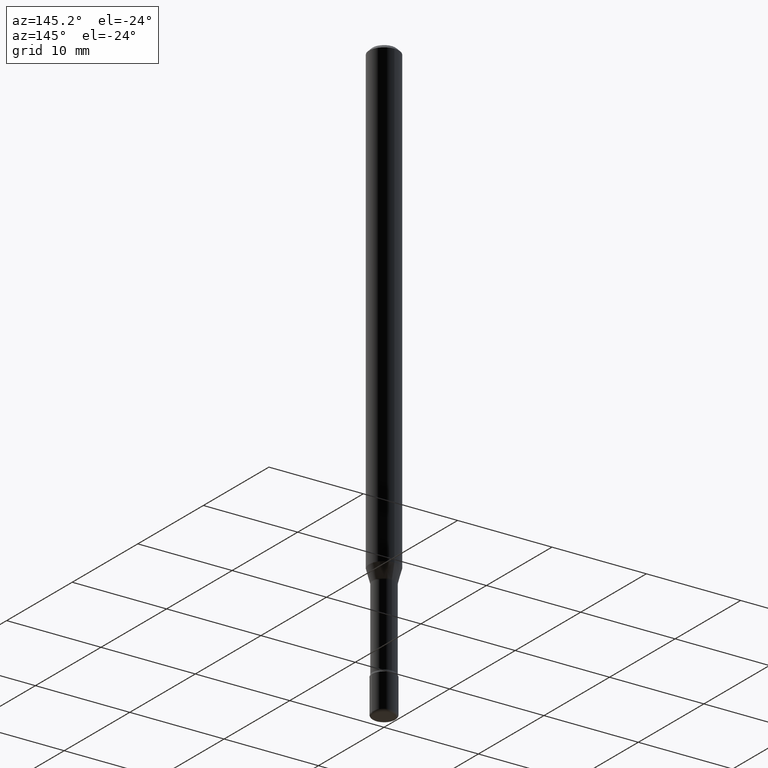
[diagram: clean part render]
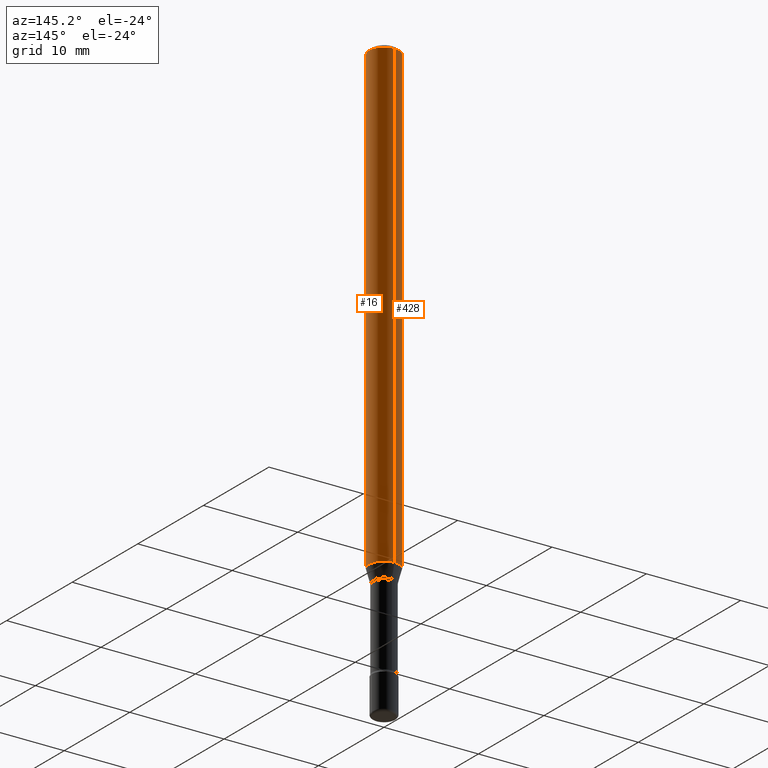
[diagram: same view with one multi-face feature highlighted, each face labeled with its STEP entity id]
A machine part, auxiliary view. The highlighted faces form ONE feature: a constant-radius fillet chain: 2 tangent blend faces with common blend radius 1.5875 mm. The faces share edges in the B-rep.
Their STEP definitions:
[1] entity #16 (Cylinder):
#16 = ADVANCED_FACE ( 'NONE', ( #132 ), #535, .T. ) ;
#29 = CARTESIAN_POINT ( 'NONE',  ( 4.749616140809899417E-29, -6.780789717166906576E-15, -1.942153212482682578 ) ) ;
#42 = CARTESIAN_POINT ( 'NONE',  ( -4.364351673553912750E-16, -0.06250000000000005551, -0.01499999999999981036 ) ) ;
#57 = CIRCLE ( 'NONE', #226, 0.06250000000000000000 ) ;
#66 = DIRECTION ( 'NONE',  ( -2.445541428082492260E-29, 3.491377340152750324E-15, 1.000000000000000000 ) ) ;
#75 = CIRCLE ( 'NONE', #442, 0.06250000000000000000 ) ;
#106 = DIRECTION ( 'NONE',  ( -2.445541428082492260E-29, 3.491377340152750324E-15, 1.000000000000000000 ) ) ;
#110 = ORIENTED_EDGE ( 'NONE', *, *, #406, .T. ) ;
#116 = VERTEX_POINT ( 'NONE', #549 ) ;
#132 = FACE_OUTER_BOUND ( 'NONE', #465, .T. ) ;
#149 = ORIENTED_EDGE ( 'NONE', *, *, #469, .F. ) ;
#152 = LINE ( 'NONE', #508, #225 ) ;
#159 = CARTESIAN_POINT ( 'NONE',  ( 4.440892098500625669E-16, 0.06250000000000000000, 2.598623151316991680E-16 ) ) ;
#161 = LINE ( 'NONE', #159, #290 ) ;
#179 = VERTEX_POINT ( 'NONE', #470 ) ;
#214 = CARTESIAN_POINT ( 'NONE',  ( -1.169113584055446105E-44, 1.669184350826100908E-30, 4.780733988912460139E-16 ) ) ;
#225 = VECTOR ( 'NONE', #106, 39.37007874015748143 ) ;
#226 = AXIS2_PLACEMENT_3D ( 'NONE', #29, #472, #474 ) ;
#229 = VERTEX_POINT ( 'NONE', #234 ) ;
#234 = CARTESIAN_POINT ( 'NONE',  ( 4.440892098501102436E-16, 0.06249999999999325540, -1.942153212482682800 ) ) ;
#261 = DIRECTION ( 'NONE',  ( -6.982962677686265922E-15, -1.000000000000000000, 3.491377340152751112E-15 ) ) ;
#262 = EDGE_CURVE ( 'NONE', #116, #494, #152, .T. ) ;
#290 = VECTOR ( 'NONE', #66, 39.37007874015748143 ) ;
#307 = AXIS2_PLACEMENT_3D ( 'NONE', #214, #352, #261 ) ;
#312 = EDGE_CURVE ( 'NONE', #229, #179, #161, .T. ) ;
#313 = DIRECTION ( 'NONE',  ( -6.982962677686265922E-15, -1.000000000000000000, 3.483106191921935554E-15 ) ) ;
#318 = ORIENTED_EDGE ( 'NONE', *, *, #312, .T. ) ;
#352 = DIRECTION ( 'NONE',  ( -2.445541428082492260E-29, 3.491377340152750324E-15, 1.000000000000000000 ) ) ;
#400 = CARTESIAN_POINT ( 'NONE',  ( 3.668312142123745187E-31, -5.237066010229135864E-17, -0.01500000000000002720 ) ) ;
#406 = EDGE_CURVE ( 'NONE', #116, #229, #57, .T. ) ;
#438 = DIRECTION ( 'NONE',  ( -2.445541428082492260E-29, 3.491377340152750324E-15, 1.000000000000000000 ) ) ;
#442 = AXIS2_PLACEMENT_3D ( 'NONE', #400, #438, #313 ) ;
#465 = EDGE_LOOP ( 'NONE', ( #110, #318, #149, #547 ) ) ;
#469 = EDGE_CURVE ( 'NONE', #494, #179, #75, .T. ) ;
#470 = CARTESIAN_POINT ( 'NONE',  ( 4.440892098501103423E-16, 0.06249999999999993755, -0.01500000000000024578 ) ) ;
#472 = DIRECTION ( 'NONE',  ( -2.445541428082492260E-29, 3.491377340152750324E-15, 1.000000000000000000 ) ) ;
#474 = DIRECTION ( 'NONE',  ( -6.982962677686265922E-15, -1.000000000000000000, 4.370956789862821150E-15 ) ) ;
#494 = VERTEX_POINT ( 'NONE', #42 ) ;
#508 = CARTESIAN_POINT ( 'NONE',  ( -4.364351673553916201E-16, -0.06250000000000000000, 6.962844826507930571E-16 ) ) ;
#535 = CYLINDRICAL_SURFACE ( 'NONE', #307, 0.06250000000000000000 ) ;
#547 = ORIENTED_EDGE ( 'NONE', *, *, #262, .F. ) ;
#549 = CARTESIAN_POINT ( 'NONE',  ( -4.364351673553439433E-16, -0.06250000000000675848, -1.942153212482682134 ) ) ;
[2] entity #428 (Cylinder):
#24 = CARTESIAN_POINT ( 'NONE',  ( 3.668312142123745187E-31, -5.237066010229135864E-17, -0.01500000000000002720 ) ) ;
#42 = CARTESIAN_POINT ( 'NONE',  ( -4.364351673553912750E-16, -0.06250000000000005551, -0.01499999999999981036 ) ) ;
#66 = DIRECTION ( 'NONE',  ( -2.445541428082492260E-29, 3.491377340152750324E-15, 1.000000000000000000 ) ) ;
#87 = ORIENTED_EDGE ( 'NONE', *, *, #262, .T. ) ;
#106 = DIRECTION ( 'NONE',  ( -2.445541428082492260E-29, 3.491377340152750324E-15, 1.000000000000000000 ) ) ;
#107 = DIRECTION ( 'NONE',  ( -6.982962677686265922E-15, -1.000000000000000000, 4.370956789862821150E-15 ) ) ;
#116 = VERTEX_POINT ( 'NONE', #549 ) ;
#117 = DIRECTION ( 'NONE',  ( -6.982962677686265922E-15, -1.000000000000000000, 3.491377340152751112E-15 ) ) ;
#144 = EDGE_CURVE ( 'NONE', #229, #116, #402, .T. ) ;
#152 = LINE ( 'NONE', #508, #225 ) ;
#159 = CARTESIAN_POINT ( 'NONE',  ( 4.440892098500625669E-16, 0.06250000000000000000, 2.598623151316991680E-16 ) ) ;
#161 = LINE ( 'NONE', #159, #290 ) ;
#164 = CYLINDRICAL_SURFACE ( 'NONE', #184, 0.06250000000000000000 ) ;
#167 = DIRECTION ( 'NONE',  ( -6.982962677686265922E-15, -1.000000000000000000, 3.483106191921935554E-15 ) ) ;
#179 = VERTEX_POINT ( 'NONE', #470 ) ;
#184 = AXIS2_PLACEMENT_3D ( 'NONE', #201, #426, #117 ) ;
#196 = CARTESIAN_POINT ( 'NONE',  ( 4.749616140809899417E-29, -6.780789717166906576E-15, -1.942153212482682578 ) ) ;
#198 = CIRCLE ( 'NONE', #300, 0.06250000000000000000 ) ;
#201 = CARTESIAN_POINT ( 'NONE',  ( -1.169113584055446105E-44, 1.669184350826100908E-30, 4.780733988912460139E-16 ) ) ;
#225 = VECTOR ( 'NONE', #106, 39.37007874015748143 ) ;
#229 = VERTEX_POINT ( 'NONE', #234 ) ;
#234 = CARTESIAN_POINT ( 'NONE',  ( 4.440892098501102436E-16, 0.06249999999999325540, -1.942153212482682800 ) ) ;
#259 = ORIENTED_EDGE ( 'NONE', *, *, #276, .F. ) ;
#262 = EDGE_CURVE ( 'NONE', #116, #494, #152, .T. ) ;
#276 = EDGE_CURVE ( 'NONE', #179, #494, #198, .T. ) ;
#290 = VECTOR ( 'NONE', #66, 39.37007874015748143 ) ;
#300 = AXIS2_PLACEMENT_3D ( 'NONE', #24, #483, #167 ) ;
#312 = EDGE_CURVE ( 'NONE', #229, #179, #161, .T. ) ;
#387 = FACE_OUTER_BOUND ( 'NONE', #539, .T. ) ;
#394 = AXIS2_PLACEMENT_3D ( 'NONE', #196, #459, #107 ) ;
#402 = CIRCLE ( 'NONE', #394, 0.06250000000000000000 ) ;
#426 = DIRECTION ( 'NONE',  ( -2.445541428082492260E-29, 3.491377340152750324E-15, 1.000000000000000000 ) ) ;
#428 = ADVANCED_FACE ( 'NONE', ( #387 ), #164, .T. ) ;
#434 = ORIENTED_EDGE ( 'NONE', *, *, #312, .F. ) ;
#449 = ORIENTED_EDGE ( 'NONE', *, *, #144, .T. ) ;
#459 = DIRECTION ( 'NONE',  ( -2.445541428082492260E-29, 3.491377340152750324E-15, 1.000000000000000000 ) ) ;
#470 = CARTESIAN_POINT ( 'NONE',  ( 4.440892098501103423E-16, 0.06249999999999993755, -0.01500000000000024578 ) ) ;
#483 = DIRECTION ( 'NONE',  ( -2.445541428082492260E-29, 3.491377340152750324E-15, 1.000000000000000000 ) ) ;
#494 = VERTEX_POINT ( 'NONE', #42 ) ;
#508 = CARTESIAN_POINT ( 'NONE',  ( -4.364351673553916201E-16, -0.06250000000000000000, 6.962844826507930571E-16 ) ) ;
#539 = EDGE_LOOP ( 'NONE', ( #434, #449, #87, #259 ) ) ;
#549 = CARTESIAN_POINT ( 'NONE',  ( -4.364351673553439433E-16, -0.06250000000000675848, -1.942153212482682134 ) ) ;